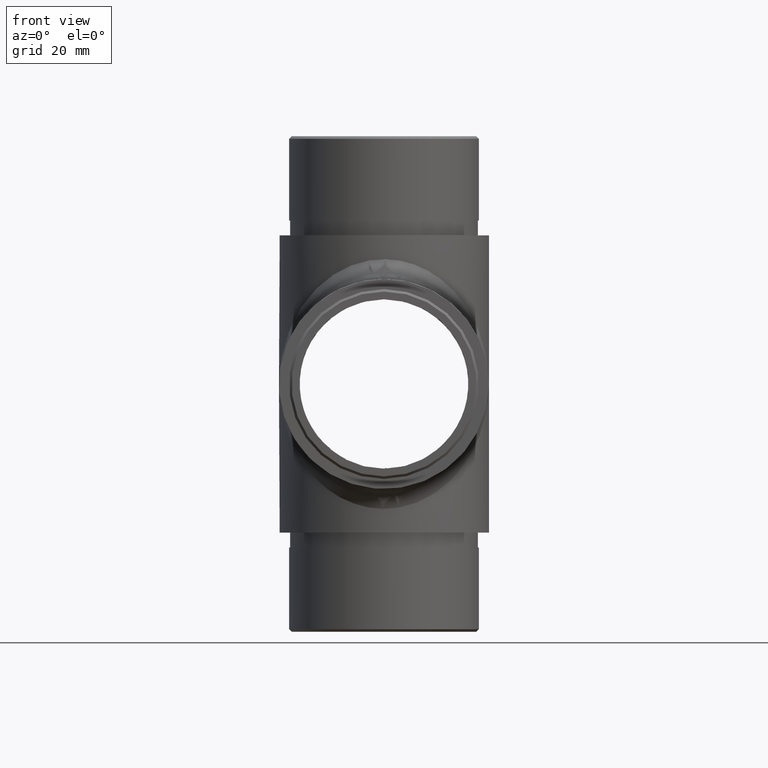
[diagram: clean part render]
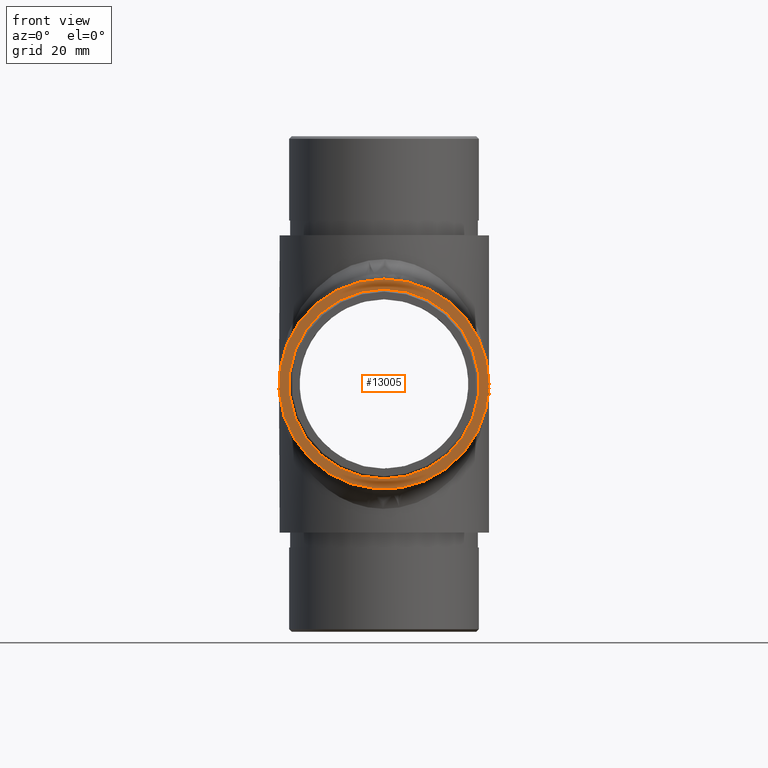
[diagram: same view with one face highlighted and labeled with its STEP entity id]
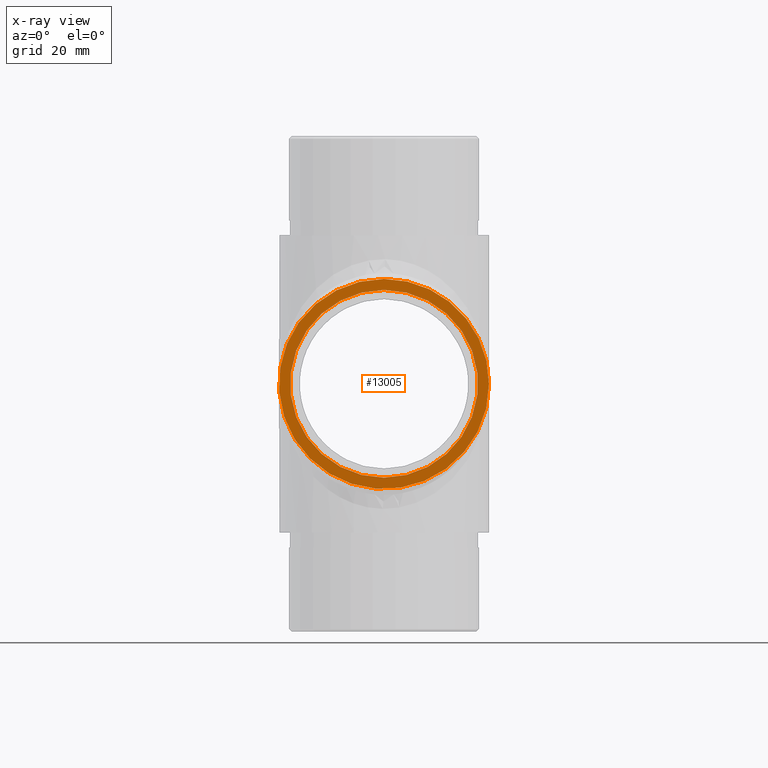
[diagram: x-ray of the same camera — body ghosted, the highlighted face saturated]
A machine part, front view. The second image highlights one B-rep face of the part: STEP entity #13005.
The next image is the same camera in x-ray: the body ghosted, the highlighted face saturated — about 8% of this face is hidden behind the body in this view.
In plain terms, the highlighted planar face has unit normal (0, 1, 0).
Its self-contained STEP definition (entity closure, byte-faithful):
#34 = FACE_BOUND ( 'NONE', #5888, .T. ) ;
#1132 = CARTESIAN_POINT ( 'NONE',  ( 0.0000000000000000000, -30.00000000000000000, 21.19999999999999900 ) ) ;
#1511 = DIRECTION ( 'NONE',  ( -0.0000000000000000000, 1.000000000000000000, -0.0000000000000000000 ) ) ;
#3273 = DIRECTION ( 'NONE',  ( 0.0000000000000000000, -0.0000000000000000000, 1.000000000000000000 ) ) ;
#3523 = AXIS2_PLACEMENT_3D ( 'NONE', #5483, #11513, #3273 ) ;
#4321 = AXIS2_PLACEMENT_3D ( 'NONE', #5619, #1511, #8748 ) ;
#4551 = CIRCLE ( 'NONE', #4321, 18.95000000000000300 ) ;
#5483 = CARTESIAN_POINT ( 'NONE',  ( 0.0000000000000000000, -30.00000000000000000, 0.0000000000000000000 ) ) ;
#5619 = CARTESIAN_POINT ( 'NONE',  ( 0.0000000000000000000, -30.00000000000000000, 0.0000000000000000000 ) ) ;
#5888 = EDGE_LOOP ( 'NONE', ( #6761 ) ) ;
#6219 = DIRECTION ( 'NONE',  ( 0.0000000000000000000, 0.0000000000000000000, 1.000000000000000000 ) ) ;
#6296 = EDGE_CURVE ( 'NONE', #6332, #6332, #11858, .T. ) ;
#6332 = VERTEX_POINT ( 'NONE', #1132 ) ;
#6453 = PLANE ( 'NONE',  #3523 ) ;
#6761 = ORIENTED_EDGE ( 'NONE', *, *, #12090, .T. ) ;
#6922 = AXIS2_PLACEMENT_3D ( 'NONE', #12327, #12291, #6219 ) ;
#8748 = DIRECTION ( 'NONE',  ( 0.0000000000000000000, 0.0000000000000000000, 1.000000000000000000 ) ) ;
#10508 = ORIENTED_EDGE ( 'NONE', *, *, #6296, .F. ) ;
#10687 = FACE_OUTER_BOUND ( 'NONE', #11699, .T. ) ;
#11142 = VERTEX_POINT ( 'NONE', #11495 ) ;
#11495 = CARTESIAN_POINT ( 'NONE',  ( 0.0000000000000000000, -30.00000000000000000, 18.95000000000000300 ) ) ;
#11513 = DIRECTION ( 'NONE',  ( 0.0000000000000000000, 1.000000000000000000, 0.0000000000000000000 ) ) ;
#11699 = EDGE_LOOP ( 'NONE', ( #10508 ) ) ;
#11858 = CIRCLE ( 'NONE', #6922, 21.19999999999999900 ) ;
#12090 = EDGE_CURVE ( 'NONE', #11142, #11142, #4551, .T. ) ;
#12291 = DIRECTION ( 'NONE',  ( 0.0000000000000000000, 1.000000000000000000, 0.0000000000000000000 ) ) ;
#12327 = CARTESIAN_POINT ( 'NONE',  ( 0.0000000000000000000, -30.00000000000000000, 0.0000000000000000000 ) ) ;
#13005 = ADVANCED_FACE ( 'NONE', ( #34, #10687 ), #6453, .F. ) ;